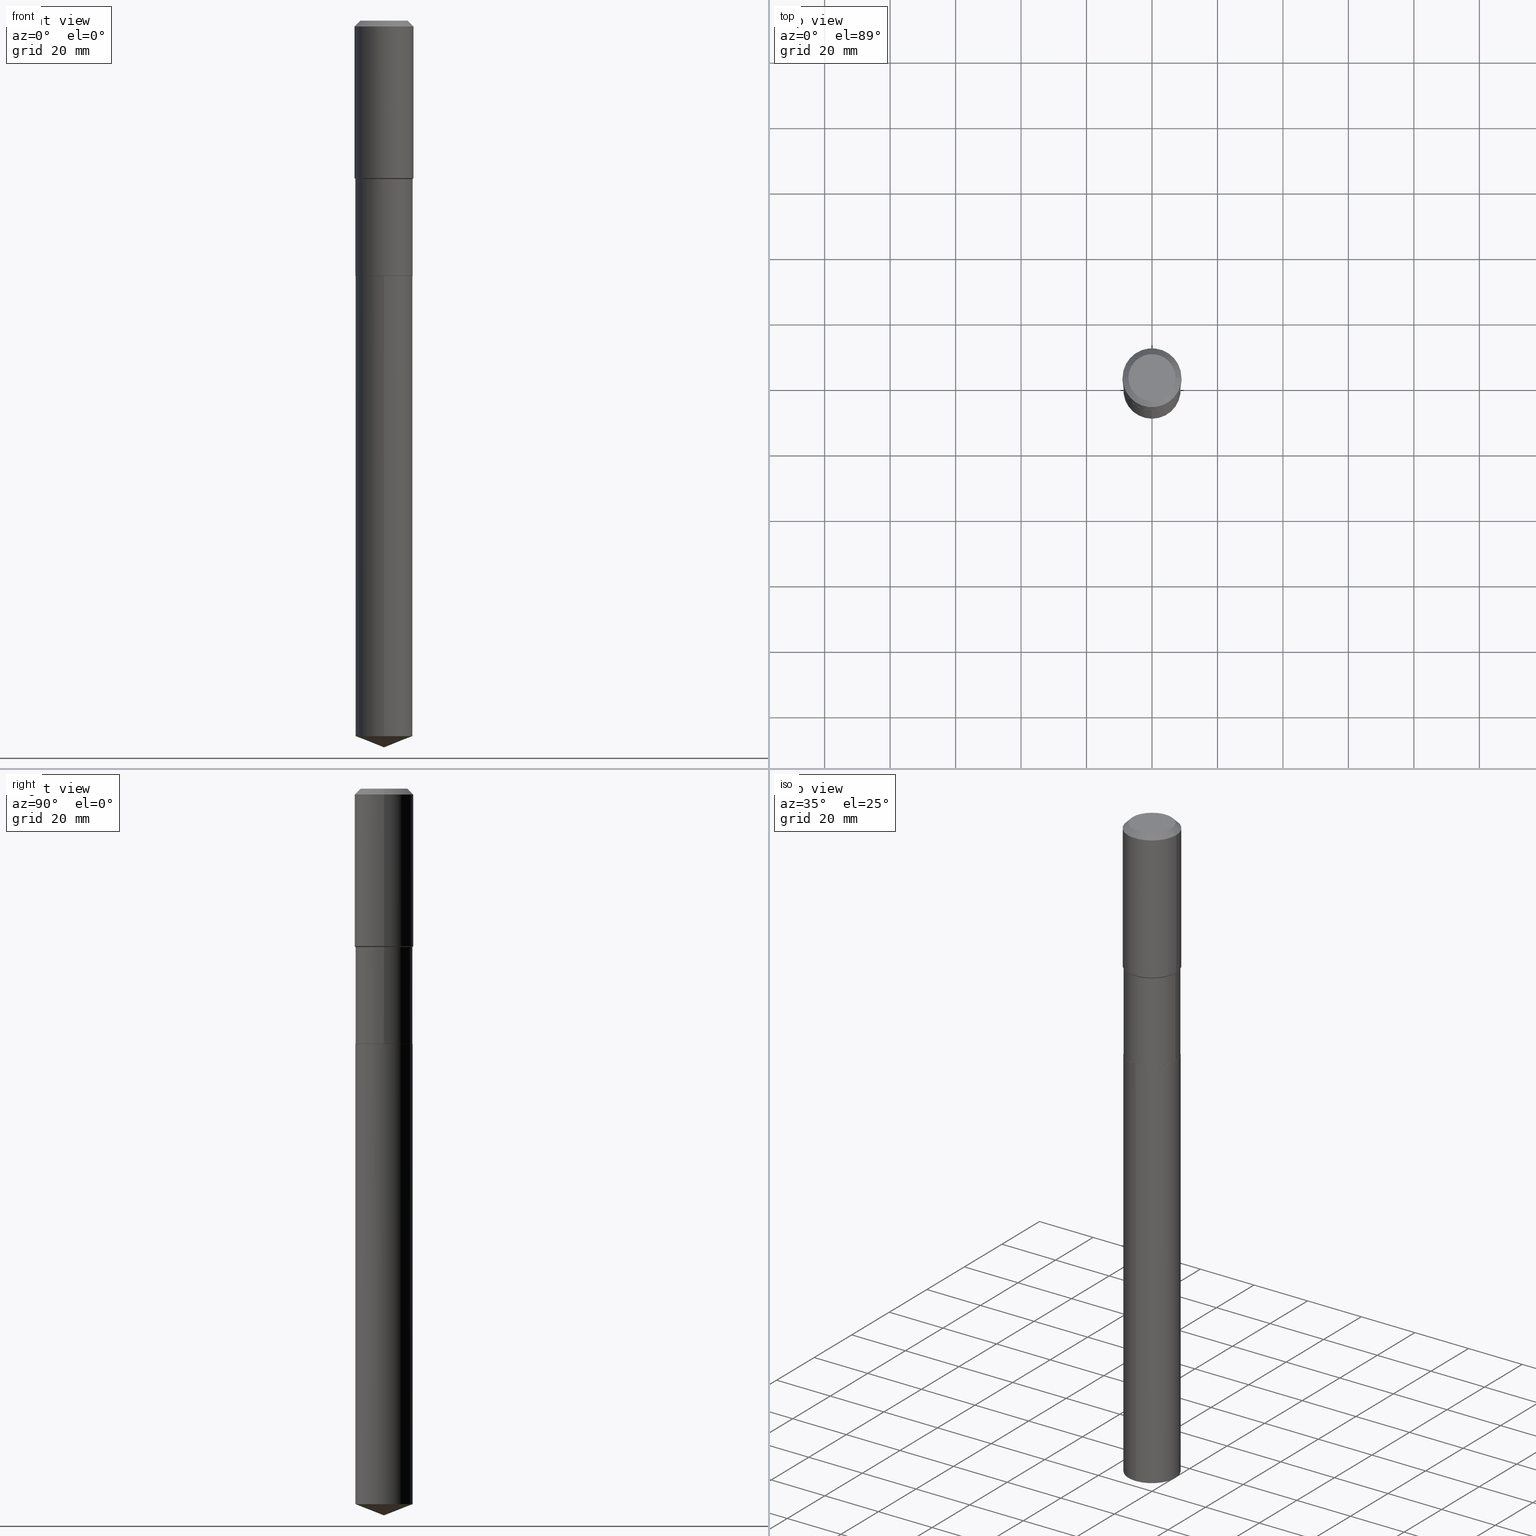
[diagram: canonical four-view strip — front | top / right | iso, engineering-drawing reading convention]
A machine part, canonical four-view strip (front | top / right | iso — engineering-drawing reading convention). The complete STEP part file that produces these views, byte-faithful:
ISO-10303-21;
HEADER;
FILE_DESCRIPTION (( 'STEP AP203' ),
    '1' );
FILE_NAME ('56506.STEP',
    '2024-04-24T18:15:45',
    ( '' ),
    ( '' ),
    'SwSTEP 2.0',
    'SolidWorks 2023',
    '' );
FILE_SCHEMA (( 'CONFIG_CONTROL_DESIGN' ));
ENDSEC;

DATA;
#1 = DIRECTION ( 'NONE',  ( 1.000000000000000000, -6.982962677686263555E-15, 0.000000000000000000 ) ) ;
#2 = CARTESIAN_POINT ( 'NONE',  ( -2.400393420454578451E-15, -0.3437500000000107137, -3.070799999999999308 ) ) ;
#3 = CARTESIAN_POINT ( 'NONE',  ( 0.3432499999999999996, -1.311854283443534584E-14, -3.070800000000000640 ) ) ;
#4 = DIRECTION ( 'NONE',  ( -2.445451521228947929E-29, 3.491506091884206227E-15, 1.000000000000000000 ) ) ;
#5 = EDGE_CURVE ( 'NONE', #257, #322, #371, .T. ) ;
#6 = CARTESIAN_POINT ( 'NONE',  ( 2.442490654175555015E-15, 0.3437499999999699130, -8.604693274007365389 ) ) ;
#7 = LINE ( 'NONE', #128, #365 ) ;
#8 = AXIS2_PLACEMENT_3D ( 'NONE', #113, #464, #125 ) ;
#9 = CARTESIAN_POINT ( 'NONE',  ( 2.137359792885415193E-28, -3.051596037040017228E-14, -8.740099999999999980 ) ) ;
#10 = ADVANCED_FACE ( 'NONE', ( #489 ), #35, .T. ) ;
#11 = CARTESIAN_POINT ( 'NONE',  ( 7.509545610033318642E-29, -1.072164089531953388E-14, -3.070800000000000640 ) ) ;
#12 = DIRECTION ( 'NONE',  ( -2.445468806185136597E-29, 3.491481338843145583E-15, 1.000000000000000000 ) ) ;
#13 = DATE_TIME_ROLE ( 'classification_date' ) ;
#14 = APPROVAL_STATUS ( 'not_yet_approved' ) ;
#15 = AXIS2_PLACEMENT_3D ( 'NONE', #34, #301, #450 ) ;
#16 = ORIENTED_EDGE ( 'NONE', *, *, #350, .T. ) ;
#17 = ORIENTED_EDGE ( 'NONE', *, *, #71, .T. ) ;
#18 = ORIENTED_EDGE ( 'NONE', *, *, #286, .T. ) ;
#19 = EDGE_CURVE ( 'NONE', #102, #239, #443, .T. ) ;
#20 = DIRECTION ( 'NONE',  ( -2.445468806185136597E-29, 3.491481338843145583E-15, 1.000000000000000000 ) ) ;
#21 = ORIENTED_EDGE ( 'NONE', *, *, #27, .F. ) ;
#22 = ORIENTED_EDGE ( 'NONE', *, *, #240, .F. ) ;
#23 = DIRECTION ( 'NONE',  ( -0.7071067811864026886, 7.493145998869830357E-15, 0.7071067811866923458 ) ) ;
#24 = ADVANCED_FACE ( 'NONE', ( #483 ), #223, .F. ) ;
#25 = VERTEX_POINT ( 'NONE', #179 ) ;
#26 = LINE ( 'NONE', #107, #224 ) ;
#27 = EDGE_CURVE ( 'NONE', #94, #357, #129, .T. ) ;
#28 = ORIENTED_EDGE ( 'NONE', *, *, #280, .T. ) ;
#29 = ADVANCED_BREP_SHAPE_REPRESENTATION ( '56506', ( #275, #403, #51 ), #264 ) ;
#30 = DIRECTION ( 'NONE',  ( -6.982962677686265922E-15, -1.000000000000000000, 3.178877665354778874E-15 ) ) ;
#31 = CARTESIAN_POINT ( 'NONE',  ( 7.508322875630224719E-29, -1.071989515465011001E-14, -3.070300000000000473 ) ) ;
#32 = CIRCLE ( 'NONE', #8, 0.3543500000000002204 ) ;
#33 = CARTESIAN_POINT ( 'NONE',  ( 7.509545610033318642E-29, -1.072164089531953388E-14, -3.070800000000000640 ) ) ;
#34 = CARTESIAN_POINT ( 'NONE',  ( 4.631962465795266270E-29, -6.613214803902800932E-15, -1.894099999999999673 ) ) ;
#35 = CYLINDRICAL_SURFACE ( 'NONE', #70, 0.3437499999999999445 ) ;
#36 = APPLICATION_PROTOCOL_DEFINITION ( 'international standard', 'config_control_design', 1994, #290 ) ;
#37 = CLOSED_SHELL ( 'NONE', ( #268, #383, #103, #61, #24 ) ) ;
#38 = VECTOR ( 'NONE', #161, 39.37007874015748143 ) ;
#39 = DIRECTION ( 'NONE',  ( 2.445451521228947649E-29, -3.491506091884206227E-15, -1.000000000000000000 ) ) ;
#40 = FACE_OUTER_BOUND ( 'NONE', #279, .T. ) ;
#41 = CYLINDRICAL_SURFACE ( 'NONE', #215, 0.3543500000000001648 ) ;
#42 = EDGE_CURVE ( 'NONE', #25, #207, #184, .T. ) ;
#43 = AXIS2_PLACEMENT_3D ( 'NONE', #158, #306, #309 ) ;
#44 = LINE ( 'NONE', #425, #302 ) ;
#45 = VECTOR ( 'NONE', #407, 39.37007874015748143 ) ;
#46 =( NAMED_UNIT ( * ) PLANE_ANGLE_UNIT ( ) SI_UNIT ( $, .RADIAN. ) );
#47 = CARTESIAN_POINT ( 'NONE',  ( -0.3543499999999999983, -9.125198590273920027E-16, -0.07087000000000041877 ) ) ;
#48 = COORDINATED_UNIVERSAL_TIME_OFFSET ( 5, 0, .BEHIND. ) ;
#49 = EDGE_LOOP ( 'NONE', ( #56, #241, #141, #366 ) ) ;
#50 = CONICAL_SURFACE ( 'NONE', #281, 0.3543499999999999983, 0.7853981633974453924 ) ;
#51 = AXIS2_PLACEMENT_3D ( 'NONE', #386, #488, #340 ) ;
#52 = ORIENTED_EDGE ( 'NONE', *, *, #462, .F. ) ;
#53 = ORIENTED_EDGE ( 'NONE', *, *, #19, .T. ) ;
#54 = ORIENTED_EDGE ( 'NONE', *, *, #432, .T. ) ;
#55 = CARTESIAN_POINT ( 'NONE',  ( 0.3437499999999999445, -2.400393420454653787E-15, 1.676185766679852578E-29 ) ) ;
#56 = ORIENTED_EDGE ( 'NONE', *, *, #159, .T. ) ;
#57 = EDGE_CURVE ( 'NONE', #357, #94, #324, .T. ) ;
#58 = DIRECTION ( 'NONE',  ( -2.445468806185136597E-29, 3.491481338843145583E-15, 1.000000000000000000 ) ) ;
#59 = ORIENTED_EDGE ( 'NONE', *, *, #453, .T. ) ;
#60 = ORIENTED_EDGE ( 'NONE', *, *, #462, .T. ) ;
#61 = ADVANCED_FACE ( 'NONE', ( #369 ), #213, .T. ) ;
#62 = APPROVAL_PERSON_ORGANIZATION ( #84, #219, #356 ) ;
#63 = AXIS2_PLACEMENT_3D ( 'NONE', #299, #332, #214 ) ;
#64 = VERTEX_POINT ( 'NONE', #410 ) ;
#65 = FACE_OUTER_BOUND ( 'NONE', #399, .T. ) ;
#66 = DIRECTION ( 'NONE',  ( -2.445451521228947929E-29, 3.491506091884206622E-15, 1.000000000000000000 ) ) ;
#67 = DIRECTION ( 'NONE',  ( 1.000000000000000000, -6.982962677686266711E-15, 0.000000000000000000 ) ) ;
#68 = AXIS2_PLACEMENT_3D ( 'NONE', #124, #86, #231 ) ;
#69 =( CONVERSION_BASED_UNIT ( 'INCH', #313 ) LENGTH_UNIT ( ) NAMED_UNIT ( #108 ) );
#70 = AXIS2_PLACEMENT_3D ( 'NONE', #76, #297, #149 ) ;
#71 = EDGE_CURVE ( 'NONE', #201, #257, #146, .T. ) ;
#72 = CARTESIAN_POINT ( 'NONE',  ( 0.3543500000000002204, -9.087627628740930810E-15, -1.894099999999999673 ) ) ;
#73 = CALENDAR_DATE ( 2024, 24, 4 ) ;
#74 = DIRECTION ( 'NONE',  ( -2.438088387897960049E-29, 3.491481338843145188E-15, 1.000000000000000000 ) ) ;
#75 = DATE_TIME_ROLE ( 'creation_date' ) ;
#76 = CARTESIAN_POINT ( 'NONE',  ( 0.000000000000000000, 0.000000000000000000, 0.000000000000000000 ) ) ;
#77 = AXIS2_PLACEMENT_3D ( 'NONE', #164, #58, #253 ) ;
#78 = AXIS2_PLACEMENT_3D ( 'NONE', #151, #378, #1 ) ;
#79 = DIRECTION ( 'NONE',  ( 2.438088387897960049E-29, -3.491481338843145188E-15, -1.000000000000000000 ) ) ;
#80 = DIRECTION ( 'NONE',  ( -6.982962677686265922E-15, -1.000000000000000000, 3.178877665354778874E-15 ) ) ;
#81 = EDGE_CURVE ( 'NONE', #166, #207, #256, .T. ) ;
#82 = CC_DESIGN_PERSON_AND_ORGANIZATION_ASSIGNMENT ( #414, #262, ( #442 ) ) ;
#83 = DIRECTION ( 'NONE',  ( 1.000000000000000000, -6.982962677686266711E-15, 0.000000000000000000 ) ) ;
#84 = PERSON_AND_ORGANIZATION ( #428, #391 ) ;
#85 = CONICAL_SURFACE ( 'NONE', #384, 0.3437499999999998335, 0.7853981633974450594 ) ;
#86 = DIRECTION ( 'NONE',  ( -2.445468806185136597E-29, 3.491481338843145583E-15, 1.000000000000000000 ) ) ;
#87 = AXIS2_PLACEMENT_3D ( 'NONE', #294, #373, #221 ) ;
#88 = LINE ( 'NONE', #2, #390 ) ;
#89 = DIRECTION ( 'NONE',  ( -1.000000000000000000, 6.982962677686265922E-15, -4.876176775795935793E-29 ) ) ;
#90 = PERSON_AND_ORGANIZATION_ROLE ( 'classification_officer' ) ;
#91 = PRODUCT_RELATED_PRODUCT_CATEGORY ( 'detail', '', ( #460 ) ) ;
#92 = EDGE_LOOP ( 'NONE', ( #473, #398, #208, #438 ) ) ;
#93 = AXIS2_PLACEMENT_3D ( 'NONE', #194, #79, #89 ) ;
#94 = VERTEX_POINT ( 'NONE', #148 ) ;
#95 = DIRECTION ( 'NONE',  ( -2.445468806185136597E-29, 3.491481338843145583E-15, 1.000000000000000000 ) ) ;
#96 = ADVANCED_FACE ( 'NONE', ( #448 ), #328, .F. ) ;
#97 = EDGE_LOOP ( 'NONE', ( #478, #396, #54, #393 ) ) ;
#98 = FACE_OUTER_BOUND ( 'NONE', #236, .T. ) ;
#99 = ORIENTED_EDGE ( 'NONE', *, *, #5, .T. ) ;
#100 = ORIENTED_EDGE ( 'NONE', *, *, #5, .F. ) ;
#101 = EDGE_LOOP ( 'NONE', ( #481, #28, #173 ) ) ;
#102 = VERTEX_POINT ( 'NONE', #72 ) ;
#103 = ADVANCED_FACE ( 'NONE', ( #144 ), #466, .T. ) ;
#104 = AXIS2_PLACEMENT_3D ( 'NONE', #447, #288, #485 ) ;
#105 = CYLINDRICAL_SURFACE ( 'NONE', #250, 0.3437499999999999445 ) ;
#106 = FACE_OUTER_BOUND ( 'NONE', #437, .T. ) ;
#107 = CARTESIAN_POINT ( 'NONE',  ( -0.3432499999999999996, -8.282702954822989601E-15, -3.070800000000000640 ) ) ;
#108 = DIMENSIONAL_EXPONENTS ( 1.000000000000000000, 0.000000000000000000, 0.000000000000000000, 0.000000000000000000, 0.000000000000000000, 0.000000000000000000, 0.000000000000000000 ) ;
#109 = CARTESIAN_POINT ( 'NONE',  ( 0.3432499999999999996, -1.311854283443534584E-14, -3.070800000000000640 ) ) ;
#110 = CARTESIAN_POINT ( 'NONE',  ( 1.733103742943416361E-30, -2.474412824838151867E-16, -0.07087000000000041877 ) ) ;
#111 = DIRECTION ( 'NONE',  ( -6.982962677686265922E-15, -1.000000000000000000, 3.178877665354778874E-15 ) ) ;
#112 = VECTOR ( 'NONE', #455, 39.37007874015748143 ) ;
#113 = CARTESIAN_POINT ( 'NONE',  ( 4.631962465795266270E-29, -6.613214803902800932E-15, -1.894099999999999673 ) ) ;
#114 = DIRECTION ( 'NONE',  ( 1.000000000000000000, -6.982962677686266711E-15, 4.876249319814053138E-29 ) ) ;
#115 = EDGE_CURVE ( 'NONE', #175, #362, #402, .T. ) ;
#116 = LOCAL_TIME ( 14, 15, 45.00000000000000000, #48 ) ;
#117 = MECHANICAL_CONTEXT ( 'NONE', #415, 'mechanical' ) ;
#118 = DIRECTION ( 'NONE',  ( 2.445468806185136597E-29, -3.491481338843145583E-15, -1.000000000000000000 ) ) ;
#119 = CARTESIAN_POINT ( 'NONE',  ( 0.3437499999999998335, -9.050617926549193356E-15, -1.904700000000000060 ) ) ;
#120 = AXIS2_PLACEMENT_3D ( 'NONE', #422, #344, #80 ) ;
#121 = VECTOR ( 'NONE', #232, 39.37007874015748143 ) ;
#122 = DIRECTION ( 'NONE',  ( -6.982962677686265922E-15, -1.000000000000000000, 3.178877665354778874E-15 ) ) ;
#123 = FACE_OUTER_BOUND ( 'NONE', #137, .T. ) ;
#124 = CARTESIAN_POINT ( 'NONE',  ( 7.509545610033318642E-29, -1.072164089531953388E-14, -3.070800000000000640 ) ) ;
#125 = DIRECTION ( 'NONE',  ( 1.000000000000000000, -6.982962677686266711E-15, 0.000000000000000000 ) ) ;
#126 = ORIENTED_EDGE ( 'NONE', *, *, #115, .T. ) ;
#127 = CIRCLE ( 'NONE', #120, 0.3437500000000000000 ) ;
#128 = CARTESIAN_POINT ( 'NONE',  ( -0.3437499999999999445, 2.442490654175343995E-15, -1.690883937275123355E-29 ) ) ;
#129 = CIRCLE ( 'NONE', #339, 0.3437499999999998335 ) ;
#130 = CC_DESIGN_APPROVAL ( #138, ( #202 ) ) ;
#131 = PERSON_AND_ORGANIZATION ( #428, #391 ) ;
#132 = EDGE_LOOP ( 'NONE', ( #430, #126 ) ) ;
#133 = COORDINATED_UNIVERSAL_TIME_OFFSET ( 5, 0, .BEHIND. ) ;
#134 = ORIENTED_EDGE ( 'NONE', *, *, #186, .F. ) ;
#135 = ORIENTED_EDGE ( 'NONE', *, *, #350, .F. ) ;
#136 = DIRECTION ( 'NONE',  ( 1.000000000000000000, -6.982962677686266711E-15, 4.876176775795935793E-29 ) ) ;
#137 = EDGE_LOOP ( 'NONE', ( #271, #287, #392, #361 ) ) ;
#138 = APPROVAL ( #14, 'UNSPECIFIED' ) ;
#139 = EDGE_LOOP ( 'NONE', ( #276, #435 ) ) ;
#140 = CARTESIAN_POINT ( 'NONE',  ( 2.442490654175418936E-15, 0.3437499999999892863, -3.070800000000001528 ) ) ;
#141 = ORIENTED_EDGE ( 'NONE', *, *, #57, .F. ) ;
#142 = ORIENTED_EDGE ( 'NONE', *, *, #81, .F. ) ;
#143 = DIRECTION ( 'NONE',  ( 1.000000000000000000, -6.982962677686269077E-15, 0.000000000000000000 ) ) ;
#144 = FACE_OUTER_BOUND ( 'NONE', #471, .T. ) ;
#145 = VECTOR ( 'NONE', #459, 39.37007874015748143 ) ;
#146 = CIRCLE ( 'NONE', #419, 0.2834800000000000098 ) ;
#147 = FACE_OUTER_BOUND ( 'NONE', #325, .T. ) ;
#148 = CARTESIAN_POINT ( 'NONE',  ( -0.3437499999999998335, -6.242569176196982176E-15, -1.904700000000000060 ) ) ;
#149 = DIRECTION ( 'NONE',  ( 1.000000000000000000, -6.982962677686266711E-15, 4.876176775795935793E-29 ) ) ;
#150 = DATE_AND_TIME ( #349, #445 ) ;
#151 = CARTESIAN_POINT ( 'NONE',  ( 7.508322875630224719E-29, -1.071989515465011001E-14, -3.070300000000000473 ) ) ;
#152 = CIRCLE ( 'NONE', #43, 0.2834800000000000098 ) ;
#153 = CC_DESIGN_PERSON_AND_ORGANIZATION_ASSIGNMENT ( #260, #182, ( #460 ) ) ;
#154 = DIRECTION ( 'NONE',  ( -6.982962677686265922E-15, -1.000000000000000000, 3.178877665354778874E-15 ) ) ;
#155 = CARTESIAN_POINT ( 'NONE',  ( -0.3543500000000002204, -4.095406619736884752E-15, -1.894099999999999673 ) ) ;
#156 = DIRECTION ( 'NONE',  ( 1.000000000000000000, -6.982962677686266711E-15, 0.000000000000000000 ) ) ;
#157 = AXIS2_PLACEMENT_3D ( 'NONE', #477, #329, #284 ) ;
#158 = CARTESIAN_POINT ( 'NONE',  ( -9.439721640706191963E-47, 1.347742071746725396E-32, 3.860086710912455110E-18 ) ) ;
#159 = EDGE_CURVE ( 'NONE', #207, #25, #187, .T. ) ;
#160 = LINE ( 'NONE', #312, #330 ) ;
#161 = DIRECTION ( 'NONE',  ( -0.7071067811865452413, 7.493145998870346272E-15, 0.7071067811865497932 ) ) ;
#162 = DATE_AND_TIME ( #198, #283 ) ;
#163 = CIRCLE ( 'NONE', #444, 0.3437500000000000000 ) ;
#164 = CARTESIAN_POINT ( 'NONE',  ( 7.509545610033318642E-29, -1.072164089531953388E-14, -3.070800000000000640 ) ) ;
#165 = CALENDAR_DATE ( 2024, 24, 4 ) ;
#166 = VERTEX_POINT ( 'NONE', #109 ) ;
#167 = ADVANCED_FACE ( 'NONE', ( #106 ), #50, .T. ) ;
#168 = ORIENTED_EDGE ( 'NONE', *, *, #159, .F. ) ;
#169 = DIRECTION ( 'NONE',  ( -2.445468806185136877E-29, 3.491481338843145188E-15, 1.000000000000000000 ) ) ;
#170 = ORIENTED_EDGE ( 'NONE', *, *, #319, .T. ) ;
#171 = CIRCLE ( 'NONE', #458, 0.3543499999999999983 ) ;
#172 = ORIENTED_EDGE ( 'NONE', *, *, #314, .T. ) ;
#173 = ORIENTED_EDGE ( 'NONE', *, *, #180, .F. ) ;
#174 = FACE_OUTER_BOUND ( 'NONE', #431, .T. ) ;
#175 = VERTEX_POINT ( 'NONE', #254 ) ;
#176 = DIRECTION ( 'NONE',  ( -2.445451521228947929E-29, 3.491506091884206622E-15, 1.000000000000000000 ) ) ;
#177 = DIRECTION ( 'NONE',  ( -2.445468806185136597E-29, 3.491481338843145583E-15, 1.000000000000000000 ) ) ;
#178 = CIRCLE ( 'NONE', #409, 0.3437500000000000000 ) ;
#179 = CARTESIAN_POINT ( 'NONE',  ( -0.3437500000000000000, -6.242569176196980598E-15, -3.070300000000000473 ) ) ;
#180 = EDGE_CURVE ( 'NONE', #64, #203, #163, .T. ) ;
#181 = CARTESIAN_POINT ( 'NONE',  ( -9.439721640706191963E-47, 1.347742071746725396E-32, 3.860086710912455110E-18 ) ) ;
#182 = PERSON_AND_ORGANIZATION_ROLE ( 'design_owner' ) ;
#183 = DIRECTION ( 'NONE',  ( 1.000000000000000000, -6.982962677686265922E-15, 4.876176775795935793E-29 ) ) ;
#184 = CIRCLE ( 'NONE', #78, 0.3437500000000000000 ) ;
#185 = DATE_AND_TIME ( #73, #418 ) ;
#186 = EDGE_CURVE ( 'NONE', #357, #102, #465, .T. ) ;
#187 = CIRCLE ( 'NONE', #469, 0.3437500000000000000 ) ;
#188 = FACE_OUTER_BOUND ( 'NONE', #92, .T. ) ;
#189 = CC_DESIGN_PERSON_AND_ORGANIZATION_ASSIGNMENT ( #131, #90, ( #202 ) ) ;
#190 = DIRECTION ( 'NONE',  ( -2.445468806185136597E-29, 3.491481338843145583E-15, 1.000000000000000000 ) ) ;
#191 = CARTESIAN_POINT ( 'NONE',  ( -0.2834800000000000098, 2.103250901112408108E-15, 3.860086710898179346E-18 ) ) ;
#192 = ADVANCED_FACE ( 'NONE', ( #196 ), #234, .F. ) ;
#193 = VECTOR ( 'NONE', #169, 39.37007874015748143 ) ;
#194 = CARTESIAN_POINT ( 'NONE',  ( -4.719860820353095981E-47, 6.738710358733626979E-33, 1.930043355456227555E-18 ) ) ;
#195 = ADVANCED_FACE ( 'NONE', ( #225 ), #380, .T. ) ;
#196 = FACE_OUTER_BOUND ( 'NONE', #249, .T. ) ;
#197 = SHAPE_DEFINITION_REPRESENTATION ( #310, #29 ) ;
#198 = CALENDAR_DATE ( 2024, 24, 4 ) ;
#199 = VECTOR ( 'NONE', #267, 39.37007874015748143 ) ;
#200 = ORIENTED_EDGE ( 'NONE', *, *, #233, .F. ) ;
#201 = VERTEX_POINT ( 'NONE', #385 ) ;
#202 = SECURITY_CLASSIFICATION ( '', '', #316 ) ;
#203 = VERTEX_POINT ( 'NONE', #6 ) ;
#204 = CC_DESIGN_DATE_AND_TIME_ASSIGNMENT ( #150, #75, ( #442 ) ) ;
#205 = ORIENTED_EDGE ( 'NONE', *, *, #280, .F. ) ;
#206 = CARTESIAN_POINT ( 'NONE',  ( -2.400393420454578451E-15, -0.3437500000000107137, -3.070799999999999308 ) ) ;
#207 = VERTEX_POINT ( 'NONE', #265 ) ;
#208 = ORIENTED_EDGE ( 'NONE', *, *, #226, .F. ) ;
#209 = DIRECTION ( 'NONE',  ( -2.445468806185136597E-29, 3.491481338843145583E-15, 1.000000000000000000 ) ) ;
#210 = CIRCLE ( 'NONE', #467, 0.3543499999999999983 ) ;
#211 = ORIENTED_EDGE ( 'NONE', *, *, #42, .F. ) ;
#212 = ORIENTED_EDGE ( 'NONE', *, *, #323, .T. ) ;
#213 = CYLINDRICAL_SURFACE ( 'NONE', #230, 0.3437500000000000000 ) ;
#214 = DIRECTION ( 'NONE',  ( 1.000000000000000000, -6.982962677686266711E-15, 0.000000000000000000 ) ) ;
#215 = AXIS2_PLACEMENT_3D ( 'NONE', #351, #12, #423 ) ;
#216 = ADVANCED_FACE ( 'NONE', ( #40 ), #41, .T. ) ;
#217 = PERSON_AND_ORGANIZATION ( #428, #391 ) ;
#218 = DIRECTION ( 'NONE',  ( 0.7071067811864026886, -2.468850131080739687E-15, 0.7071067811866923458 ) ) ;
#219 = APPROVAL ( #229, 'UNSPECIFIED' ) ;
#220 = DIRECTION ( 'NONE',  ( -2.445468806185136597E-29, 3.491481338843145583E-15, 1.000000000000000000 ) ) ;
#221 = DIRECTION ( 'NONE',  ( -6.982962677686266711E-15, -1.000000000000000000, 3.498627837350021972E-15 ) ) ;
#222 = LINE ( 'NONE', #377, #452 ) ;
#223 = PLANE ( 'NONE',  #295 ) ;
#224 = VECTOR ( 'NONE', #23, 39.37007874015748143 ) ;
#225 = FACE_OUTER_BOUND ( 'NONE', #358, .T. ) ;
#226 = EDGE_CURVE ( 'NONE', #362, #175, #127, .T. ) ;
#227 = CARTESIAN_POINT ( 'NONE',  ( 0.3543499999999999983, -2.721854107321943733E-15, -0.07087000000000041877 ) ) ;
#228 = CARTESIAN_POINT ( 'NONE',  ( 1.733103742943416361E-30, -2.474412824838151867E-16, -0.07087000000000041877 ) ) ;
#229 = APPROVAL_STATUS ( 'not_yet_approved' ) ;
#230 = AXIS2_PLACEMENT_3D ( 'NONE', #413, #487, #111 ) ;
#231 = DIRECTION ( 'NONE',  ( 1.000000000000000000, -6.982962677686269077E-15, 0.000000000000000000 ) ) ;
#232 = DIRECTION ( 'NONE',  ( -2.445468806185136877E-29, 3.491481338843145188E-15, 1.000000000000000000 ) ) ;
#233 = EDGE_CURVE ( 'NONE', #237, #322, #210, .T. ) ;
#234 = PLANE ( 'NONE',  #93 ) ;
#235 = COORDINATED_UNIVERSAL_TIME_OFFSET ( 5, 0, .BEHIND. ) ;
#236 = EDGE_LOOP ( 'NONE', ( #277, #441, #404, #134 ) ) ;
#237 = VERTEX_POINT ( 'NONE', #227 ) ;
#238 = CIRCLE ( 'NONE', #68, 0.3432499999999999996 ) ;
#239 = VERTEX_POINT ( 'NONE', #155 ) ;
#240 = EDGE_CURVE ( 'NONE', #257, #201, #152, .T. ) ;
#241 = ORIENTED_EDGE ( 'NONE', *, *, #252, .T. ) ;
#242 = DESIGN_CONTEXT ( 'detailed design', #290, 'design' ) ;
#243 = CARTESIAN_POINT ( 'NONE',  ( 2.104241333527326859E-28, -3.004326297335327895E-14, -8.604693274007363613 ) ) ;
#244 = VERTEX_POINT ( 'NONE', #387 ) ;
#245 = VERTEX_POINT ( 'NONE', #421 ) ;
#246 = CARTESIAN_POINT ( 'NONE',  ( 4.657884435140829401E-29, -6.650224506094539963E-15, -1.904700000000000060 ) ) ;
#247 = ORIENTED_EDGE ( 'NONE', *, *, #476, .T. ) ;
#248 = CARTESIAN_POINT ( 'NONE',  ( 0.3437499999999998335, -9.050617926549193356E-15, -1.904700000000000060 ) ) ;
#249 = EDGE_LOOP ( 'NONE', ( #251, #17 ) ) ;
#250 = AXIS2_PLACEMENT_3D ( 'NONE', #367, #95, #136 ) ;
#251 = ORIENTED_EDGE ( 'NONE', *, *, #240, .T. ) ;
#252 = EDGE_CURVE ( 'NONE', #25, #94, #7, .T. ) ;
#253 = DIRECTION ( 'NONE',  ( 1.000000000000000000, -6.982962677686269077E-15, 0.000000000000000000 ) ) ;
#254 = CARTESIAN_POINT ( 'NONE',  ( 2.442490654175555409E-15, 0.3437499999999892863, -3.070800000000001528 ) ) ;
#255 = EDGE_CURVE ( 'NONE', #94, #239, #382, .T. ) ;
#256 = LINE ( 'NONE', #3, #317 ) ;
#257 = VERTEX_POINT ( 'NONE', #191 ) ;
#258 = LINE ( 'NONE', #375, #121 ) ;
#259 = CARTESIAN_POINT ( 'NONE',  ( 7.509545610033318642E-29, -1.072164089531953388E-14, -3.070800000000000640 ) ) ;
#260 = PERSON_AND_ORGANIZATION ( #428, #391 ) ;
#261 = DIRECTION ( 'NONE',  ( -1.000000000000000000, 6.982962677686266711E-15, 0.000000000000000000 ) ) ;
#262 = PERSON_AND_ORGANIZATION_ROLE ( 'creator' ) ;
#263 = CARTESIAN_POINT ( 'NONE',  ( 4.657884435140829401E-29, -6.650224506094539963E-15, -1.904700000000000060 ) ) ;
#264 =( GEOMETRIC_REPRESENTATION_CONTEXT ( 3 ) GLOBAL_UNCERTAINTY_ASSIGNED_CONTEXT ( ( #434 ) ) GLOBAL_UNIT_ASSIGNED_CONTEXT ( ( #69, #46, #451 ) ) REPRESENTATION_CONTEXT ( 'NONE', 'WORKASPACE' ) );
#265 = CARTESIAN_POINT ( 'NONE',  ( 0.3437500000000000000, -1.312028857510476340E-14, -3.070300000000000473 ) ) ;
#266 = ADVANCED_FACE ( 'NONE', ( #123 ), #424, .T. ) ;
#267 = DIRECTION ( 'NONE',  ( 6.611014441532063434E-15, 0.9304175679820264611, 0.3665012267242921395 ) ) ;
#268 = ADVANCED_FACE ( 'NONE', ( #188 ), #307, .T. ) ;
#269 = CARTESIAN_POINT ( 'NONE',  ( 0.000000000000000000, 0.000000000000000000, 0.000000000000000000 ) ) ;
#270 = AXIS2_PLACEMENT_3D ( 'NONE', #259, #74, #183 ) ;
#271 = ORIENTED_EDGE ( 'NONE', *, *, #255, .F. ) ;
#272 = LINE ( 'NONE', #9, #199 ) ;
#273 = PERSON_AND_ORGANIZATION_ROLE ( 'design_supplier' ) ;
#274 = EDGE_LOOP ( 'NONE', ( #389, #368, #289, #21 ) ) ;
#275 = MANIFOLD_SOLID_BREP ( 'Body-Move/Copy2[1]', #37 ) ;
#276 = ORIENTED_EDGE ( 'NONE', *, *, #319, .F. ) ;
#277 = ORIENTED_EDGE ( 'NONE', *, *, #57, .T. ) ;
#278 = DATE_AND_TIME ( #429, #326 ) ;
#279 = EDGE_LOOP ( 'NONE', ( #282, #59, #60, #474 ) ) ;
#280 = EDGE_CURVE ( 'NONE', #245, #203, #272, .T. ) ;
#281 = AXIS2_PLACEMENT_3D ( 'NONE', #456, #118, #261 ) ;
#282 = ORIENTED_EDGE ( 'NONE', *, *, #476, .F. ) ;
#283 = LOCAL_TIME ( 14, 15, 45.00000000000000000, #235 ) ;
#284 = DIRECTION ( 'NONE',  ( -1.000000000000000000, 6.982962677686266711E-15, 0.000000000000000000 ) ) ;
#285 = PRODUCT_DEFINITION_FORMATION_WITH_SPECIFIED_SOURCE ( 'ANY', '', #460, .NOT_KNOWN. ) ;
#286 = EDGE_CURVE ( 'NONE', #201, #237, #44, .T. ) ;
#287 = ORIENTED_EDGE ( 'NONE', *, *, #27, .T. ) ;
#288 = DIRECTION ( 'NONE',  ( -2.445451521228947929E-29, 3.491506091884206622E-15, 1.000000000000000000 ) ) ;
#289 = ORIENTED_EDGE ( 'NONE', *, *, #374, .T. ) ;
#290 = APPLICATION_CONTEXT ( 'configuration controlled 3d designs of mechanical parts and assemblies' ) ;
#291 = ORIENTED_EDGE ( 'NONE', *, *, #71, .F. ) ;
#292 = CLOSED_SHELL ( 'NONE', ( #359, #167, #195, #411, #341, #10, #266, #216, #379, #192, #96, #400 ) ) ;
#293 = AXIS2_PLACEMENT_3D ( 'NONE', #11, #346, #122 ) ;
#294 = CARTESIAN_POINT ( 'NONE',  ( -7.490407502668498784E-28, 1.069448333771820695E-13, 30.62997874015748323 ) ) ;
#295 = AXIS2_PLACEMENT_3D ( 'NONE', #33, #39, #336 ) ;
#296 = DIRECTION ( 'NONE',  ( -2.445468806185136597E-29, 3.491481338843145583E-15, 1.000000000000000000 ) ) ;
#297 = DIRECTION ( 'NONE',  ( -2.445468806185136597E-29, 3.491481338843145583E-15, 1.000000000000000000 ) ) ;
#298 = APPROVAL_ROLE ( '' ) ;
#299 = CARTESIAN_POINT ( 'NONE',  ( 4.657884435140829401E-29, -6.650224506094539963E-15, -1.904700000000000060 ) ) ;
#300 =( LENGTH_UNIT ( ) NAMED_UNIT ( * ) SI_UNIT ( $, .METRE. ) );
#301 = DIRECTION ( 'NONE',  ( -2.445468806185136597E-29, 3.491481338843145583E-15, 1.000000000000000000 ) ) ;
#302 = VECTOR ( 'NONE', #348, 39.37007874015748143 ) ;
#303 = AXIS2_PLACEMENT_3D ( 'NONE', #376, #338, #154 ) ;
#304 = APPLICATION_PROTOCOL_DEFINITION ( 'international standard', 'config_control_design', 1994, #415 ) ;
#305 = DIRECTION ( 'NONE',  ( 1.000000000000000000, -6.982962677686263555E-15, 0.000000000000000000 ) ) ;
#306 = DIRECTION ( 'NONE',  ( -2.445468806185136597E-29, 3.491481338843145583E-15, 1.000000000000000000 ) ) ;
#307 = CYLINDRICAL_SURFACE ( 'NONE', #293, 0.3437500000000000000 ) ;
#308 = AXIS2_PLACEMENT_3D ( 'NONE', #269, #190, #461 ) ;
#309 = DIRECTION ( 'NONE',  ( 1.000000000000000000, -6.982962677686266711E-15, 4.876249319814053138E-29 ) ) ;
#310 = PRODUCT_DEFINITION_SHAPE ( 'NONE', 'NONE',  #442 ) ;
#311 = APPROVAL ( #335, 'UNSPECIFIED' ) ;
#312 = CARTESIAN_POINT ( 'NONE',  ( 2.137349084069312683E-28, -3.051611239367715199E-14, -8.740099999999999980 ) ) ;
#313 = LENGTH_MEASURE_WITH_UNIT ( LENGTH_MEASURE( 0.02539999999999999897 ), #300 );
#314 = EDGE_CURVE ( 'NONE', #245, #64, #160, .T. ) ;
#315 = DIRECTION ( 'NONE',  ( -2.445468806185136597E-29, 3.491481338843145583E-15, 1.000000000000000000 ) ) ;
#316 = SECURITY_CLASSIFICATION_LEVEL ( 'unclassified' ) ;
#317 = VECTOR ( 'NONE', #218, 39.37007874015748143 ) ;
#318 = CONICAL_SURFACE ( 'NONE', #401, 0.3432499999999999996, 0.7853981633972434429 ) ;
#319 = EDGE_CURVE ( 'NONE', #166, #244, #238, .T. ) ;
#320 = APPROVAL_DATE_TIME ( #468, #138 ) ;
#321 = ORIENTED_EDGE ( 'NONE', *, *, #233, .T. ) ;
#322 = VERTEX_POINT ( 'NONE', #47 ) ;
#323 = EDGE_CURVE ( 'NONE', #244, #166, #347, .T. ) ;
#324 = CIRCLE ( 'NONE', #63, 0.3437499999999998335 ) ;
#325 = EDGE_LOOP ( 'NONE', ( #135, #212, #433, #211 ) ) ;
#326 = LOCAL_TIME ( 14, 15, 45.00000000000000000, #133 ) ;
#327 = ORIENTED_EDGE ( 'NONE', *, *, #449, .T. ) ;
#328 = PLANE ( 'NONE',  #270 ) ;
#329 = DIRECTION ( 'NONE',  ( 2.445468806185136597E-29, -3.491481338843145583E-15, -1.000000000000000000 ) ) ;
#330 = VECTOR ( 'NONE', #463, 39.37007874015748854 ) ;
#331 = CC_DESIGN_APPROVAL ( #311, ( #442 ) ) ;
#332 = DIRECTION ( 'NONE',  ( -2.445468806185136597E-29, 3.491481338843145583E-15, 1.000000000000000000 ) ) ;
#333 = CC_DESIGN_PERSON_AND_ORGANIZATION_ASSIGNMENT ( #426, #273, ( #285 ) ) ;
#334 = CARTESIAN_POINT ( 'NONE',  ( 4.657884435140829401E-29, -6.650224506094539963E-15, -1.904700000000000060 ) ) ;
#335 = APPROVAL_STATUS ( 'not_yet_approved' ) ;
#336 = DIRECTION ( 'NONE',  ( 6.982962677686265922E-15, 1.000000000000000000, -3.491506091884206227E-15 ) ) ;
#337 = COORDINATED_UNIVERSAL_TIME_OFFSET ( 5, 0, .BEHIND. ) ;
#338 = DIRECTION ( 'NONE',  ( -2.445451521228947929E-29, 3.491506091884206622E-15, 1.000000000000000000 ) ) ;
#339 = AXIS2_PLACEMENT_3D ( 'NONE', #334, #454, #67 ) ;
#340 = DIRECTION ( 'NONE',  ( 1.000000000000000000, 0.000000000000000000, 0.000000000000000000 ) ) ;
#341 = ADVANCED_FACE ( 'NONE', ( #360 ), #105, .T. ) ;
#342 = CC_DESIGN_SECURITY_CLASSIFICATION ( #202, ( #285 ) ) ;
#343 = DIRECTION ( 'NONE',  ( -6.982962677686265922E-15, -1.000000000000000000, 3.178877665354778874E-15 ) ) ;
#344 = DIRECTION ( 'NONE',  ( -2.445451521228947929E-29, 3.491506091884206622E-15, 1.000000000000000000 ) ) ;
#345 = EDGE_CURVE ( 'NONE', #203, #64, #178, .T. ) ;
#346 = DIRECTION ( 'NONE',  ( -2.445451521228947929E-29, 3.491506091884206622E-15, 1.000000000000000000 ) ) ;
#347 = CIRCLE ( 'NONE', #77, 0.3432499999999999996 ) ;
#348 = DIRECTION ( 'NONE',  ( 0.7071067811865454633, -7.319954787623248157E-15, -0.7071067811865495711 ) ) ;
#349 = CALENDAR_DATE ( 2024, 24, 4 ) ;
#350 = EDGE_CURVE ( 'NONE', #244, #25, #26, .T. ) ;
#351 = CARTESIAN_POINT ( 'NONE',  ( 0.000000000000000000, 0.000000000000000000, 0.000000000000000000 ) ) ;
#352 = APPROVAL_ROLE ( '' ) ;
#353 = PERSON_AND_ORGANIZATION ( #428, #391 ) ;
#354 = CONICAL_SURFACE ( 'NONE', #484, 0.3432499999999999996, 0.7853981633972434429 ) ;
#355 = AXIS2_PLACEMENT_3D ( 'NONE', #263, #315, #156 ) ;
#356 = APPROVAL_ROLE ( '' ) ;
#357 = VERTEX_POINT ( 'NONE', #248 ) ;
#358 = EDGE_LOOP ( 'NONE', ( #53, #247, #200, #52 ) ) ;
#359 = ADVANCED_FACE ( 'NONE', ( #174 ), #318, .T. ) ;
#360 = FACE_OUTER_BOUND ( 'NONE', #49, .T. ) ;
#361 = ORIENTED_EDGE ( 'NONE', *, *, #453, .F. ) ;
#362 = VERTEX_POINT ( 'NONE', #206 ) ;
#363 = CC_DESIGN_PERSON_AND_ORGANIZATION_ASSIGNMENT ( #353, #388, ( #285 ) ) ;
#364 = LINE ( 'NONE', #140, #112 ) ;
#365 = VECTOR ( 'NONE', #381, 39.37007874015748143 ) ;
#366 = ORIENTED_EDGE ( 'NONE', *, *, #374, .F. ) ;
#367 = CARTESIAN_POINT ( 'NONE',  ( 0.000000000000000000, 0.000000000000000000, 0.000000000000000000 ) ) ;
#368 = ORIENTED_EDGE ( 'NONE', *, *, #42, .T. ) ;
#369 = FACE_OUTER_BOUND ( 'NONE', #97, .T. ) ;
#370 = CONICAL_SURFACE ( 'NONE', #157, 0.3543499999999999983, 0.7853981633974453924 ) ;
#371 = LINE ( 'NONE', #416, #45 ) ;
#372 = DIRECTION ( 'NONE',  ( 1.000000000000000000, -6.982962677686266711E-15, 0.000000000000000000 ) ) ;
#373 = DIRECTION ( 'NONE',  ( -2.445451521228947929E-29, 3.491506091884206622E-15, 1.000000000000000000 ) ) ;
#374 = EDGE_CURVE ( 'NONE', #207, #357, #395, .T. ) ;
#375 = CARTESIAN_POINT ( 'NONE',  ( -0.3543500000000001648, 2.517808184165916180E-15, -1.743024649231826627E-29 ) ) ;
#376 = CARTESIAN_POINT ( 'NONE',  ( 7.509545610033318642E-29, -1.072164089531953388E-14, -3.070800000000000640 ) ) ;
#377 = CARTESIAN_POINT ( 'NONE',  ( 0.3543500000000001648, -2.474412824838129483E-15, 1.727873240503290590E-29 ) ) ;
#378 = DIRECTION ( 'NONE',  ( -2.445468806185136597E-29, 3.491481338843145583E-15, 1.000000000000000000 ) ) ;
#379 = ADVANCED_FACE ( 'NONE', ( #65 ), #370, .T. ) ;
#380 = CYLINDRICAL_SURFACE ( 'NONE', #308, 0.3543500000000001648 ) ;
#381 = DIRECTION ( 'NONE',  ( -2.445468806185136877E-29, 3.491481338843145188E-15, 1.000000000000000000 ) ) ;
#382 = LINE ( 'NONE', #457, #38 ) ;
#383 = ADVANCED_FACE ( 'NONE', ( #482 ), #475, .T. ) ;
#384 = AXIS2_PLACEMENT_3D ( 'NONE', #246, #209, #439 ) ;
#385 = CARTESIAN_POINT ( 'NONE',  ( 0.2834800000000000098, -2.311636360201216027E-15, 3.860086710927458874E-18 ) ) ;
#386 = CARTESIAN_POINT ( 'NONE',  ( 0.000000000000000000, 0.000000000000000000, 0.000000000000000000 ) ) ;
#387 = CARTESIAN_POINT ( 'NONE',  ( -0.3432499999999999996, -8.280053727648877611E-15, -3.070800000000000640 ) ) ;
#388 = PERSON_AND_ORGANIZATION_ROLE ( 'creator' ) ;
#389 = ORIENTED_EDGE ( 'NONE', *, *, #252, .F. ) ;
#390 = VECTOR ( 'NONE', #4, 39.37007874015748143 ) ;
#391 = ORGANIZATION ( 'UNSPECIFIED', 'UNSPECIFIED', '' ) ;
#392 = ORIENTED_EDGE ( 'NONE', *, *, #186, .T. ) ;
#393 = ORIENTED_EDGE ( 'NONE', *, *, #115, .F. ) ;
#394 = APPROVAL_PERSON_ORGANIZATION ( #472, #138, #352 ) ;
#395 = LINE ( 'NONE', #55, #193 ) ;
#396 = ORIENTED_EDGE ( 'NONE', *, *, #345, .T. ) ;
#397 = CARTESIAN_POINT ( 'NONE',  ( 7.509545610033318642E-29, -1.072164089531953388E-14, -3.070800000000000640 ) ) ;
#398 = ORIENTED_EDGE ( 'NONE', *, *, #420, .T. ) ;
#399 = EDGE_LOOP ( 'NONE', ( #480, #22, #99, #327 ) ) ;
#400 = ADVANCED_FACE ( 'NONE', ( #147 ), #354, .T. ) ;
#401 = AXIS2_PLACEMENT_3D ( 'NONE', #405, #20, #143 ) ;
#402 = CIRCLE ( 'NONE', #303, 0.3437500000000000000 ) ;
#403 = MANIFOLD_SOLID_BREP ( 'Body-Move/Copy2[2]', #292 ) ;
#404 = ORIENTED_EDGE ( 'NONE', *, *, #19, .F. ) ;
#405 = CARTESIAN_POINT ( 'NONE',  ( 7.509545610033318642E-29, -1.072164089531953388E-14, -3.070800000000000640 ) ) ;
#406 = CARTESIAN_POINT ( 'NONE',  ( 2.104241333527326859E-28, -3.004326297335327895E-14, -8.604693274007363613 ) ) ;
#407 = DIRECTION ( 'NONE',  ( -0.7071067811865454633, 2.468850131082235367E-15, -0.7071067811865495711 ) ) ;
#408 = DIRECTION ( 'NONE',  ( -2.445468806185136877E-29, 3.491481338843145188E-15, 1.000000000000000000 ) ) ;
#409 = AXIS2_PLACEMENT_3D ( 'NONE', #243, #176, #30 ) ;
#410 = CARTESIAN_POINT ( 'NONE',  ( -2.400393420454443161E-15, -0.3437500000000300315, -8.604693274007363613 ) ) ;
#411 = ADVANCED_FACE ( 'NONE', ( #98 ), #85, .T. ) ;
#412 = COORDINATED_UNIVERSAL_TIME_OFFSET ( 5, 0, .BEHIND. ) ;
#413 = CARTESIAN_POINT ( 'NONE',  ( 7.509545610033318642E-29, -1.072164089531953388E-14, -3.070800000000000640 ) ) ;
#414 = PERSON_AND_ORGANIZATION ( #428, #391 ) ;
#415 = APPLICATION_CONTEXT ( 'configuration controlled 3d designs of mechanical parts and assemblies' ) ;
#416 = CARTESIAN_POINT ( 'NONE',  ( -0.3543499999999999983, 2.226971542354313655E-15, -0.07087000000000041877 ) ) ;
#417 = DIRECTION ( 'NONE',  ( -2.445468806185136597E-29, 3.491481338843145583E-15, 1.000000000000000000 ) ) ;
#418 = LOCAL_TIME ( 14, 15, 45.00000000000000000, #412 ) ;
#419 = AXIS2_PLACEMENT_3D ( 'NONE', #181, #177, #114 ) ;
#420 = EDGE_CURVE ( 'NONE', #203, #175, #364, .T. ) ;
#421 = CARTESIAN_POINT ( 'NONE',  ( 2.137349084069312683E-28, -3.051611239367715199E-14, -8.740099999999999980 ) ) ;
#422 = CARTESIAN_POINT ( 'NONE',  ( 7.509545610033318642E-29, -1.072164089531953388E-14, -3.070800000000000640 ) ) ;
#423 = DIRECTION ( 'NONE',  ( 1.000000000000000000, -6.982962677686265922E-15, 4.876176775795935793E-29 ) ) ;
#424 = CONICAL_SURFACE ( 'NONE', #355, 0.3437499999999998335, 0.7853981633974450594 ) ;
#425 = CARTESIAN_POINT ( 'NONE',  ( 0.3543499999999999983, -2.678458747994157430E-15, -0.07087000000000041877 ) ) ;
#426 = PERSON_AND_ORGANIZATION ( #428, #391 ) ;
#427 = CC_DESIGN_DATE_AND_TIME_ASSIGNMENT ( #278, #13, ( #202 ) ) ;
#428 = PERSON ( 'UNSPECIFIED', 'UNSPECIFIED', 'UNSPECIFIED', ('UNSPECIFIED'), ('UNSPECIFIED'), ('UNSPECIFIED') ) ;
#429 = CALENDAR_DATE ( 2024, 24, 4 ) ;
#430 = ORIENTED_EDGE ( 'NONE', *, *, #226, .T. ) ;
#431 = EDGE_LOOP ( 'NONE', ( #170, #16, #168, #142 ) ) ;
#432 = EDGE_CURVE ( 'NONE', #64, #362, #88, .T. ) ;
#433 = ORIENTED_EDGE ( 'NONE', *, *, #81, .T. ) ;
#434 = UNCERTAINTY_MEASURE_WITH_UNIT (LENGTH_MEASURE( 1.000000000000000082E-05 ), #69, 'distance_accuracy_value', 'NONE');
#435 = ORIENTED_EDGE ( 'NONE', *, *, #323, .F. ) ;
#436 = DIRECTION ( 'NONE',  ( 1.000000000000000000, -6.982962677686269077E-15, 0.000000000000000000 ) ) ;
#437 = EDGE_LOOP ( 'NONE', ( #291, #18, #321, #100 ) ) ;
#438 = ORIENTED_EDGE ( 'NONE', *, *, #432, .F. ) ;
#439 = DIRECTION ( 'NONE',  ( 1.000000000000000000, -6.982962677686266711E-15, 0.000000000000000000 ) ) ;
#440 = ORIENTED_EDGE ( 'NONE', *, *, #345, .F. ) ;
#441 = ORIENTED_EDGE ( 'NONE', *, *, #255, .T. ) ;
#442 = PRODUCT_DEFINITION ( 'UNKNOWN', '', #285, #242 ) ;
#443 = CIRCLE ( 'NONE', #15, 0.3543500000000002204 ) ;
#444 = AXIS2_PLACEMENT_3D ( 'NONE', #406, #66, #343 ) ;
#445 = LOCAL_TIME ( 14, 15, 45.00000000000000000, #337 ) ;
#446 = DIRECTION ( 'NONE',  ( -2.445468806185136597E-29, 3.491481338843145583E-15, 1.000000000000000000 ) ) ;
#447 = CARTESIAN_POINT ( 'NONE',  ( -7.490407502668498784E-28, 1.069448333771820695E-13, 30.62997874015748323 ) ) ;
#448 = FACE_OUTER_BOUND ( 'NONE', #139, .T. ) ;
#449 = EDGE_CURVE ( 'NONE', #322, #237, #171, .T. ) ;
#450 = DIRECTION ( 'NONE',  ( 1.000000000000000000, -6.982962677686266711E-15, 0.000000000000000000 ) ) ;
#451 =( NAMED_UNIT ( * ) SI_UNIT ( $, .STERADIAN. ) SOLID_ANGLE_UNIT ( ) );
#452 = VECTOR ( 'NONE', #408, 39.37007874015748143 ) ;
#453 = EDGE_CURVE ( 'NONE', #239, #102, #32, .T. ) ;
#454 = DIRECTION ( 'NONE',  ( -2.445468806185136597E-29, 3.491481338843145583E-15, 1.000000000000000000 ) ) ;
#455 = DIRECTION ( 'NONE',  ( -2.445451521228947929E-29, 3.491506091884206227E-15, 1.000000000000000000 ) ) ;
#456 = CARTESIAN_POINT ( 'NONE',  ( 1.733103742943416361E-30, -2.474412824838151867E-16, -0.07087000000000041877 ) ) ;
#457 = CARTESIAN_POINT ( 'NONE',  ( -0.3437499999999998335, -4.207733851919196363E-15, -1.904700000000000060 ) ) ;
#458 = AXIS2_PLACEMENT_3D ( 'NONE', #110, #220, #372 ) ;
#459 = DIRECTION ( 'NONE',  ( 0.7071067811865452413, -2.468850131082233000E-15, 0.7071067811865497932 ) ) ;
#460 = PRODUCT ( '56506', '56506', '', ( #117 ) ) ;
#461 = DIRECTION ( 'NONE',  ( 1.000000000000000000, -6.982962677686265922E-15, 4.876176775795935793E-29 ) ) ;
#462 = EDGE_CURVE ( 'NONE', #102, #237, #222, .T. ) ;
#463 = DIRECTION ( 'NONE',  ( -6.497071151882115892E-15, -0.9304175679820240186, 0.3665012267242986899 ) ) ;
#464 = DIRECTION ( 'NONE',  ( -2.445468806185136597E-29, 3.491481338843145583E-15, 1.000000000000000000 ) ) ;
#465 = LINE ( 'NONE', #119, #145 ) ;
#466 = CONICAL_SURFACE ( 'NONE', #87, 99.94676754583946376, 1.195550537616117737 ) ;
#467 = AXIS2_PLACEMENT_3D ( 'NONE', #228, #417, #83 ) ;
#468 = DATE_AND_TIME ( #165, #116 ) ;
#469 = AXIS2_PLACEMENT_3D ( 'NONE', #31, #446, #305 ) ;
#470 = APPROVAL_DATE_TIME ( #162, #219 ) ;
#471 = EDGE_LOOP ( 'NONE', ( #205, #172, #440 ) ) ;
#472 = PERSON_AND_ORGANIZATION ( #428, #391 ) ;
#473 = ORIENTED_EDGE ( 'NONE', *, *, #180, .T. ) ;
#474 = ORIENTED_EDGE ( 'NONE', *, *, #449, .F. ) ;
#475 = CONICAL_SURFACE ( 'NONE', #104, 99.94676754583946376, 1.195550537616117737 ) ;
#476 = EDGE_CURVE ( 'NONE', #239, #322, #258, .T. ) ;
#477 = CARTESIAN_POINT ( 'NONE',  ( 1.733103742943416361E-30, -2.474412824838151867E-16, -0.07087000000000041877 ) ) ;
#478 = ORIENTED_EDGE ( 'NONE', *, *, #420, .F. ) ;
#479 = CC_DESIGN_APPROVAL ( #219, ( #285 ) ) ;
#480 = ORIENTED_EDGE ( 'NONE', *, *, #286, .F. ) ;
#481 = ORIENTED_EDGE ( 'NONE', *, *, #314, .F. ) ;
#482 = FACE_OUTER_BOUND ( 'NONE', #101, .T. ) ;
#483 = FACE_OUTER_BOUND ( 'NONE', #132, .T. ) ;
#484 = AXIS2_PLACEMENT_3D ( 'NONE', #397, #296, #436 ) ;
#485 = DIRECTION ( 'NONE',  ( -6.982962677686266711E-15, -1.000000000000000000, 3.498627837350021972E-15 ) ) ;
#486 = APPROVAL_PERSON_ORGANIZATION ( #217, #311, #298 ) ;
#487 = DIRECTION ( 'NONE',  ( -2.445451521228947929E-29, 3.491506091884206622E-15, 1.000000000000000000 ) ) ;
#488 = DIRECTION ( 'NONE',  ( 0.000000000000000000, 0.000000000000000000, 1.000000000000000000 ) ) ;
#489 = FACE_OUTER_BOUND ( 'NONE', #274, .T. ) ;
#490 = APPROVAL_DATE_TIME ( #185, #311 ) ;
ENDSEC;
END-ISO-10303-21;
